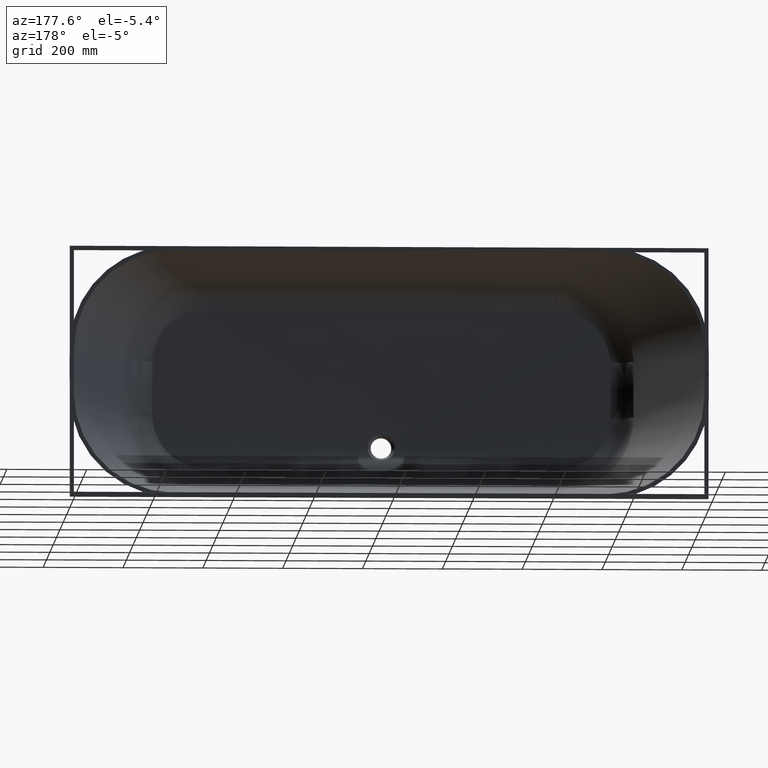
[diagram: clean part render]
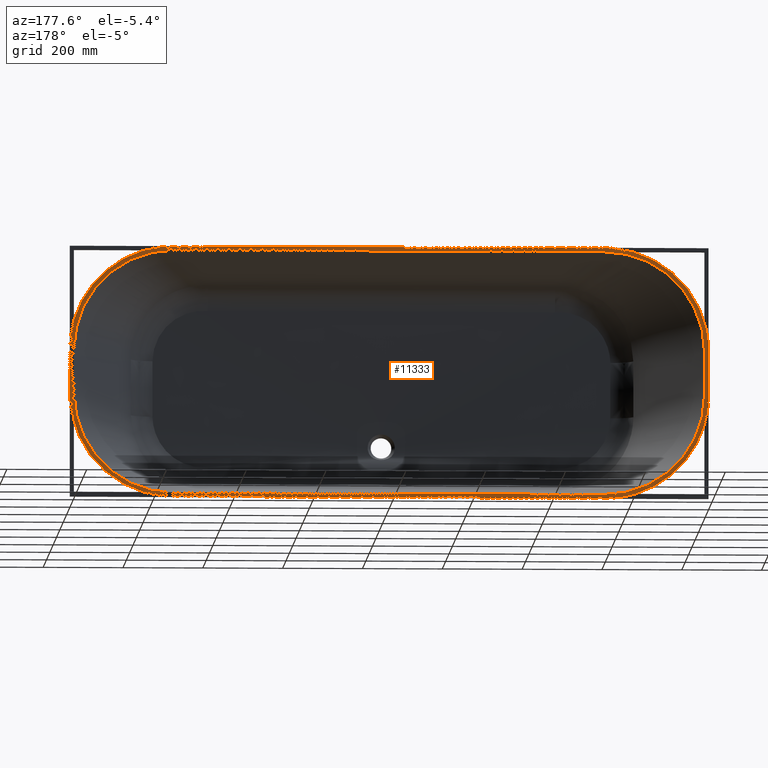
[diagram: same view with one face highlighted and labeled with its STEP entity id]
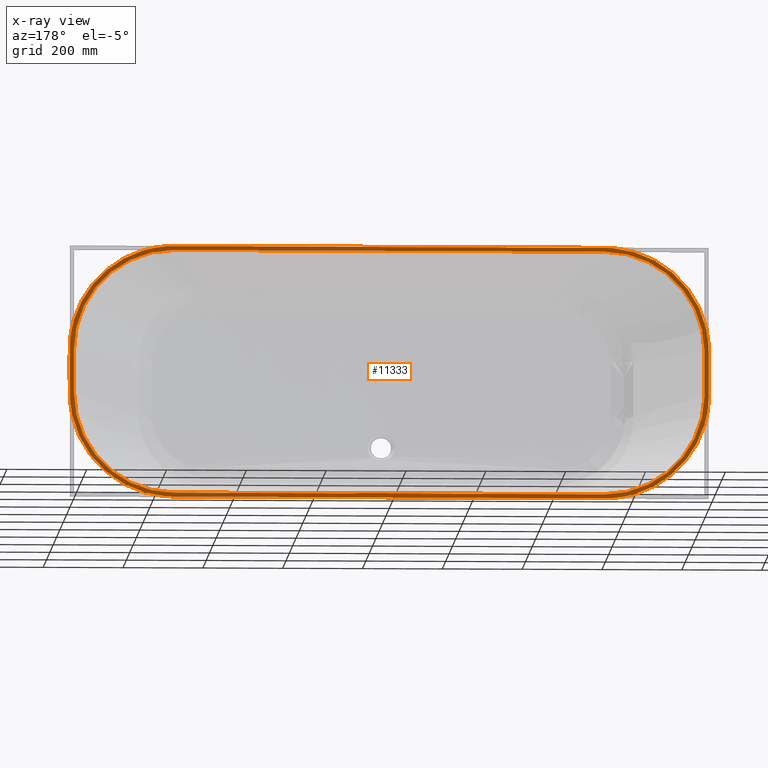
[diagram: x-ray of the same camera — body ghosted, the highlighted face saturated]
A machine part, auxiliary view. The second image highlights one B-rep face of the part: STEP entity #11333.
The next image is the same camera in x-ray: the body ghosted, the highlighted face saturated — about 0% of this face is hidden behind the body in this view.
In plain terms, the highlighted planar face has unit normal (0, -1, 0).
Its self-contained STEP definition (entity closure, byte-faithful):
#22 = CARTESIAN_POINT ( 'NONE',  ( -605.4817269374038915, 3.174543961037556478E-13, -306.8297520519155341 ) ) ;
#38 = EDGE_CURVE ( 'NONE', #7604, #12897, #401, .T. ) ;
#125 = CARTESIAN_POINT ( 'NONE',  ( 536.5213542237917181, 8.782037597132587178E-14, 315.0688195525798392 ) ) ;
#147 = CARTESIAN_POINT ( 'NONE',  ( 537.6195403802749979, -8.720238073300903075E-13, -315.0688195525793276 ) ) ;
#257 = CARTESIAN_POINT ( 'NONE',  ( 621.2204182232993617, -1.159554223473247194E-12, 302.1886917201051688 ) ) ;
#297 = EDGE_CURVE ( 'NONE', #12609, #7886, #1283, .T. ) ;
#388 = CARTESIAN_POINT ( 'NONE',  ( 715.6788676308208323, -9.757819552374394556E-15, 247.2513564127681320 ) ) ;
#401 = LINE ( 'NONE', #8546, #4158 ) ;
#515 = CARTESIAN_POINT ( 'NONE',  ( 775.2391697566557696, 3.252606517456510778E-14, 167.0457026503689519 ) ) ;
#640 = DIRECTION ( 'NONE',  ( 0.0000000000000000000, 0.0000000000000000000, -1.000000000000000000 ) ) ;
#644 = CARTESIAN_POINT ( 'NONE',  ( 799.1138545721930768, -1.437652080715779132E-13, 83.36871185086621949 ) ) ;
#693 = CARTESIAN_POINT ( 'NONE',  ( -793.8829495547472561, -6.108395039783331981E-13, -114.8300056041485675 ) ) ;
#770 = CARTESIAN_POINT ( 'NONE',  ( 800.6762580494111035, 1.333568672156830613E-14, 26.04243127981547801 ) ) ;
#840 = CARTESIAN_POINT ( 'NONE',  ( 790.0000000000001137, 0.0000000000000000000, 55.00000000000004974 ) ) ;
#972 = CARTESIAN_POINT ( 'NONE',  ( -775.5642751830262114, -1.609389704837491870E-12, -166.3627650942160585 ) ) ;
#1190 = CARTESIAN_POINT ( 'NONE',  ( 800.6762580494106487, -6.680853786855678322E-13, 4.655357770898278313E-13 ) ) ;
#1213 = CARTESIAN_POINT ( 'NONE',  ( -800.6762580494106487, 2.699663409488976723E-13, -49.81702233144527270 ) ) ;
#1283 = B_SPLINE_CURVE_WITH_KNOTS ( 'NONE', 3,
 ( #1190, #17479, #1459, #21871, #11477, #21611, #11606, #9339, #13487, #6167, #7648, #6032, #10045, #7912, #18179, #21915, #15928, #24301, #16195, #5767, #17919, #24434, #3889, #19921, #1636, #5898, #12174, #26164, #11780, #15799, #22045, #3756, #24165, #12042, #18048, #13925, #9912, #12410, #10279, #20416, #10408, #18545, #22539, #8415, #2258, #14418, #20545, #16560, #16428, #24409, #22408, #6271, #12280, #24540, #4124, #4258, #14294, #20683, #12552, #10545, #10414, #147, #2398, #4396, #6409, #20552, #18417, #14425, #8287, #22676, #18552, #4266, #16434, #22546, #16566, #10286, #18293, #22, #5885, #12162, #12031, #26281, #16049, #10160, #7901, #3878, #16312, #20298, #6021, #16184, #4007, #10034, #22169, #20170, #11251, #15261, #19253, #5101, #9122, #3096, #17263, #7109, #21385, #25377, #13260, #972, #10967, #25099, #2816, #8837, #16977, #4820, #693, #23101, #12973, #21106, #25618, #15504, #17500, #19500, #21498, #11361, #3206, #1213, #13371, #9361, #9121, #7108 ),
 .UNSPECIFIED., .F., .F.,
 ( 4, 1, 1, 2, 2, 2, 2, 2, 2, 2, 2, 2, 2, 2, 2, 2, 2, 2, 2, 2, 2, 2, 2, 2, 2, 2, 2, 2, 2, 2, 2, 2, 1, 1, 1, 1, 1, 2, 2, 2, 2, 2, 2, 2, 2, 2, 2, 2, 2, 2, 2, 2, 2, 2, 2, 2, 2, 2, 2, 2, 2, 2, 2, 2, 2, 2, 1, 4 ),
 ( -0.2027873519190733220, -0.1717256462681021056, -0.1561947934426164697, -0.1484293670298736378, -0.1406639406171308337, -0.1251330877916451978, -0.1173676613789023937, -0.1134849481725309778, -0.1096022349661595618, -0.07854052931518834546, -0.04747882366421721234, -0.03194797083873165966, -0.02418254442598888332, -0.01641711801324607922, 0.01464458763772497063, 0.04570629328869602048, 0.05347171970143876907, 0.05735443290781028214, 0.06123714611418179521, 0.07676799893966740340, 0.1078297045906385643, 0.1388914102416097252, 0.1466568366543524737, 0.1544222630670951113, 0.1699531158925808860, 0.1777185423053236901, 0.1854839687180666052, 0.2010148215435522689, 0.2320765271945237629, 0.2476073800200094821, 0.2553728064327521752, 0.2592555196391235217, 0.2631382328454948127, 0.2941999384964680275, 0.7911872289120371882, 1.288174519327606404, 1.319236224978579841, 1.323118938184951299, 1.327001651391322978, 1.334767077804066338, 1.350297930629553278, 1.381359636280526937, 1.396890489106014099, 1.404655915518757459, 1.412421341931500818, 1.443483047582474477, 1.459013900407960973, 1.466779326820704554, 1.474544753233447913, 1.505606458884421794, 1.521137311709908735, 1.528902738122652316, 1.536668164535395897, 1.567729870186369778, 1.598791575837343881, 1.614322428662830822, 1.618205141869202723, 1.622087855075574625, 1.629853281488318206, 1.660914987139292087, 1.691976692790266190, 1.699742119203009549, 1.707507545615753131, 1.723038398441240293, 1.730803824853983874, 1.738569251266727234, 1.754100104092214396, 1.785161809743188721 ),
 .UNSPECIFIED. ) ;
#1459 = CARTESIAN_POINT ( 'NONE',  ( 800.6762580494115582, -7.864802559209851184E-13, -26.08489502548048122 ) ) ;
#1597 = CARTESIAN_POINT ( 'NONE',  ( -798.4836482226193084, -1.490994827602065698E-12, 88.98341612280795232 ) ) ;
#1636 = CARTESIAN_POINT ( 'NONE',  ( 768.7410521100470078, -1.606787619623517571E-13, -179.7494674035816615 ) ) ;
#1727 = CARTESIAN_POINT ( 'NONE',  ( -769.5607753437576548, 1.632808471763186338E-13, 178.2391415946705138 ) ) ;
#1854 = CARTESIAN_POINT ( 'NONE',  ( -690.9572926845619349, -5.392821605942897035E-13, 267.3298371494526577 ) ) ;
#1979 = CARTESIAN_POINT ( 'NONE',  ( -578.3478215012531791, 6.046595515951643082E-13, 312.2843684293895308 ) ) ;
#2110 = CARTESIAN_POINT ( 'NONE',  ( -0.01473423012902195031, 7.757466544133781196E-13, 315.0688195525796687 ) ) ;
#2240 = CARTESIAN_POINT ( 'NONE',  ( 606.1005344291488655, 3.981190377366783389E-13, 306.6696638754435753 ) ) ;
#2258 = CARTESIAN_POINT ( 'NONE',  ( 644.1447770715626575, 1.756407519426514406E-13, -293.4827260094567123 ) ) ;
#2376 = CARTESIAN_POINT ( 'NONE',  ( 691.3462719728488537, -3.142017895862926721E-13, 267.0591617998452421 ) ) ;
#2398 = CARTESIAN_POINT ( 'NONE',  ( 525.8374983905723639, -4.811824766762245522E-13, -315.0688195525794981 ) ) ;
#2486 = AXIS2_PLACEMENT_3D ( 'NONE', #14398, #22516, #4238 ) ;
#2508 = CARTESIAN_POINT ( 'NONE',  ( 762.2806942672356172, -9.764324765404360036E-13, 191.2603442848623558 ) ) ;
#2637 = CARTESIAN_POINT ( 'NONE',  ( 798.1420876952295202, -4.956972332603640444E-13, 91.18902800091376548 ) ) ;
#2764 = CARTESIAN_POINT ( 'NONE',  ( 800.6762580494104213, -1.626953780031730990E-12, 57.29334881559437775 ) ) ;
#2816 = CARTESIAN_POINT ( 'NONE',  ( -778.8487920808802301, -1.209969624493855765E-13, -159.1880278387418173 ) ) ;
#2882 = VECTOR ( 'NONE', #19902, 1000.000000000000000 ) ;
#3096 = CARTESIAN_POINT ( 'NONE',  ( -744.0379029665079997, -4.943961906533521566E-14, -217.2137897541860809 ) ) ;
#3206 = CARTESIAN_POINT ( 'NONE',  ( -800.6779537221051442, -4.735795089416754050E-13, -52.43897370460474860 ) ) ;
#3587 = CARTESIAN_POINT ( 'NONE',  ( -800.3944931585587028, 4.996003610813203422E-13, 68.06015689073205976 ) ) ;
#3606 = LINE ( 'NONE', #11761, #2882 ) ;
#3717 = CARTESIAN_POINT ( 'NONE',  ( -776.6475932605666230, 8.372209175933066249E-13, 164.1697975817821202 ) ) ;
#3756 = CARTESIAN_POINT ( 'NONE',  ( 724.3858369568492890, -5.483894588431669310E-13, -238.8798425512629535 ) ) ;
#3849 = CARTESIAN_POINT ( 'NONE',  ( -715.1719754245710874, -5.633514488234671951E-13, 247.7109641394946493 ) ) ;
#3859 = EDGE_CURVE ( 'NONE', #8040, #10894, #3606, .T. ) ;
#3878 = CARTESIAN_POINT ( 'NONE',  ( -663.9755690883547459, 3.076965765513870167E-13, -283.8909210307252806 ) ) ;
#3889 = CARTESIAN_POINT ( 'NONE',  ( 772.4095508762020472, 7.350890729451699868E-14, -172.8024993369661217 ) ) ;
#3978 = CARTESIAN_POINT ( 'NONE',  ( -606.4031863664291677, 7.591583611743504066E-13, 306.7490586622564024 ) ) ;
#4007 = CARTESIAN_POINT ( 'NONE',  ( -690.8530711944496261, -1.144266972841205217E-12, -267.4096904458899644 ) ) ;
#4106 = CARTESIAN_POINT ( 'NONE',  ( -536.5508226840519228, -1.668587143455206975E-13, 315.0688195525795550 ) ) ;
#4124 = CARTESIAN_POINT ( 'NONE',  ( 576.5516939694324492, 5.565209751368074065E-13, -312.7381256406505372 ) ) ;
#4158 = VECTOR ( 'NONE', #16683, 1000.000000000000000 ) ;
#4203 = CARTESIAN_POINT ( 'NONE',  ( 540.0000000000001137, 0.0000000000000000000, 55.00000000000004974 ) ) ;
#4238 = DIRECTION ( 'NONE',  ( 0.0000000000000000000, 0.0000000000000000000, -1.000000000000000000 ) ) ;
#4241 = CARTESIAN_POINT ( 'NONE',  ( 575.4975459563197546, 1.837722682362931783E-13, 312.8847002466919776 ) ) ;
#4258 = CARTESIAN_POINT ( 'NONE',  ( 561.0693759676273658, 5.565209751368108396E-13, -314.2886769937988447 ) ) ;
#4266 = CARTESIAN_POINT ( 'NONE',  ( -546.3208730793646737, -1.557998521861681484E-13, -315.0112377309006320 ) ) ;
#4373 = CARTESIAN_POINT ( 'NONE',  ( 673.6539942504323335, -9.666746569880852449E-13, 278.3555274035503544 ) ) ;
#4396 = CARTESIAN_POINT ( 'NONE',  ( 346.4886369917692832, -6.411903885443494898E-13, -315.0688195525798392 ) ) ;
#4411 = CIRCLE ( 'NONE', #19327, 250.0000000000000000 ) ;
#4456 = VERTEX_POINT ( 'NONE', #14663 ) ;
#4506 = CARTESIAN_POINT ( 'NONE',  ( 737.7604170922695630, -3.883612181843077892E-13, 224.7881767445858827 ) ) ;
#4642 = CARTESIAN_POINT ( 'NONE',  ( 788.4557860216177687, 1.628254822638724904E-12, 134.3326378137316510 ) ) ;
#4769 = CARTESIAN_POINT ( 'NONE',  ( 800.1017217749912334, 1.960671208722803586E-12, 72.92197197534100894 ) ) ;
#4820 = CARTESIAN_POINT ( 'NONE',  ( -788.2882370154261480, -6.108395039783322894E-13, -134.8493532356088451 ) ) ;
#4934 = EDGE_CURVE ( 'NONE', #12897, #13573, #19929, .T. ) ;
#5101 = CARTESIAN_POINT ( 'NONE',  ( -728.4081731852885468, -8.294146619514176573E-13, -234.7862844864230283 ) ) ;
#5156 = VERTEX_POINT ( 'NONE', #23441 ) ;
#5190 = CARTESIAN_POINT ( 'NONE',  ( 540.0000000000001137, 0.0000000000000000000, -305.0000000000000000 ) ) ;
#5403 = CARTESIAN_POINT ( 'NONE',  ( 540.0000000000001137, 0.0000000000000000000, -54.99999999999993605 ) ) ;
#5430 = CARTESIAN_POINT ( 'NONE',  ( -539.9999999999998863, 0.0000000000000000000, 305.0000000000000568 ) ) ;
#5528 = CARTESIAN_POINT ( 'NONE',  ( 800.6762580494106487, -6.680853786855678322E-13, 4.655357770898278313E-13 ) ) ;
#5561 = LINE ( 'NONE', #13720, #14873 ) ;
#5601 = CARTESIAN_POINT ( 'NONE',  ( -800.6770891755299999, -3.317658647805648617E-14, 52.35360379609588222 ) ) ;
#5729 = CARTESIAN_POINT ( 'NONE',  ( -788.2329810406870365, 1.044737213407032477E-12, 135.0310660285497306 ) ) ;
#5767 = CARTESIAN_POINT ( 'NONE',  ( 779.1457329967483929, -5.627009275199773061E-13, -158.6041450712961307 ) ) ;
#5858 = CARTESIAN_POINT ( 'NONE',  ( -726.4853998174927483, 4.683753385137377893E-14, 236.7725965514343329 ) ) ;
#5885 = CARTESIAN_POINT ( 'NONE',  ( -613.0617610153540227, 3.174543961037588285E-13, -304.7067559791478857 ) ) ;
#5898 = CARTESIAN_POINT ( 'NONE',  ( 762.3585681042529814, -1.606787619623519591E-13, -191.1339195854063746 ) ) ;
#5992 = CARTESIAN_POINT ( 'NONE',  ( -635.9605831907597349, 2.127204662416569292E-13, 296.9189568231253702 ) ) ;
#6021 = CARTESIAN_POINT ( 'NONE',  ( -677.6231600988580794, -3.662434938656070834E-13, -275.9422518164638518 ) ) ;
#6032 = CARTESIAN_POINT ( 'NONE',  ( 798.6411988956542700, -9.081277396738579081E-13, -87.37318977481793070 ) ) ;
#6123 = CARTESIAN_POINT ( 'NONE',  ( -544.4024940529458263, -5.919743861770879453E-14, 315.0489981353833855 ) ) ;
#6167 = CARTESIAN_POINT ( 'NONE',  ( 799.3882392000595019, 1.301693128286098239E-12, -80.85608051628180704 ) ) ;
#6256 = CARTESIAN_POINT ( 'NONE',  ( 546.9808250656559494, 4.033232081646079650E-14, 314.9951823369258364 ) ) ;
#6271 = CARTESIAN_POINT ( 'NONE',  ( 607.0453204088449866, -2.309350627394122930E-13, -306.4207447879349502 ) ) ;
#6384 = EDGE_CURVE ( 'NONE', #13573, #16877, #26241, .T. ) ;
#6386 = CARTESIAN_POINT ( 'NONE',  ( 659.8809785131370518, -1.288682702216259867E-12, 286.0524212728490170 ) ) ;
#6409 = CARTESIAN_POINT ( 'NONE',  ( 0.8820719604982075746, -1.322509809997818309E-12, -315.0688195525793844 ) ) ;
#6515 = CARTESIAN_POINT ( 'NONE',  ( 724.2117610804400556, -5.828670879282071837E-13, 239.0535881723645844 ) ) ;
#6554 = CARTESIAN_POINT ( 'NONE',  ( 540.0000000000001137, 0.0000000000000000000, -54.99999999999993605 ) ) ;
#6640 = LINE ( 'NONE', #14792, #21006 ) ;
#6650 = CARTESIAN_POINT ( 'NONE',  ( 779.0712799922359864, 1.272419669628983965E-12, 158.6778842826480229 ) ) ;
#6780 = CARTESIAN_POINT ( 'NONE',  ( 799.5138500092762115, 7.806255641895631925E-14, 79.43581763546565355 ) ) ;
#6816 = CARTESIAN_POINT ( 'NONE',  ( 790.0000000000001137, 0.0000000000000000000, -54.99999999999993605 ) ) ;
#7108 = CARTESIAN_POINT ( 'NONE',  ( -800.6762580494106487, -7.734698298511588632E-13, -2.631295785479003392E-15 ) ) ;
#7109 = CARTESIAN_POINT ( 'NONE',  ( -761.9838560130730230, 8.697469827678715560E-13, -191.7407420034265044 ) ) ;
#7416 = FACE_OUTER_BOUND ( 'NONE', #9381, .T. ) ;
#7604 = VERTEX_POINT ( 'NONE', #16786 ) ;
#7611 = CARTESIAN_POINT ( 'NONE',  ( -800.6762580494109898, 3.838075690598685192E-13, 26.17680259145537747 ) ) ;
#7648 = CARTESIAN_POINT ( 'NONE',  ( 799.1134124335305842, -9.081277396738599276E-13, -83.46305634663711714 ) ) ;
#7705 = CARTESIAN_POINT ( 'NONE',  ( 790.0000000000000000, 0.0000000000000000000, 1.266013573950537714E-09 ) ) ;
#7743 = CARTESIAN_POINT ( 'NONE',  ( -793.6940112392081801, 4.878909776184770963E-13, 114.7861405445692640 ) ) ;
#7873 = CARTESIAN_POINT ( 'NONE',  ( -743.9258820486284094, -4.391018798566294472E-13, 217.3536568934646027 ) ) ;
#7886 = VERTEX_POINT ( 'NONE', #23470 ) ;
#7901 = CARTESIAN_POINT ( 'NONE',  ( -659.3297955474827177, 1.190453985389074276E-13, -286.3359380323429946 ) ) ;
#7912 = CARTESIAN_POINT ( 'NONE',  ( 798.1197810307332929, 3.480288973678459641E-13, -91.27645426785016980 ) ) ;
#7993 = CARTESIAN_POINT ( 'NONE',  ( -539.9999999999998863, 0.0000000000000000000, 305.0000000000000568 ) ) ;
#8006 = CARTESIAN_POINT ( 'NONE',  ( -650.3727698271919735, 4.514617846229649551E-13, 290.6784713508514528 ) ) ;
#8040 = VERTEX_POINT ( 'NONE', #5190 ) ;
#8137 = CARTESIAN_POINT ( 'NONE',  ( -560.1033562207926479, -7.188260403578918379E-14, 314.3646675500730225 ) ) ;
#8265 = CARTESIAN_POINT ( 'NONE',  ( 539.1386034357619792, 8.782037597132816894E-14, 315.0688195525797823 ) ) ;
#8287 = CARTESIAN_POINT ( 'NONE',  ( -538.4736280125463281, -2.878556767949013263E-13, -315.0688195525794981 ) ) ;
#8398 = CARTESIAN_POINT ( 'NONE',  ( 623.7156498735412242, -2.654126918244514350E-13, 301.3591317735742336 ) ) ;
#8415 = CARTESIAN_POINT ( 'NONE',  ( 646.5463050699891028, 6.960577947356964972E-14, -292.4244695374874254 ) ) ;
#8436 = AXIS2_PLACEMENT_3D ( 'NONE', #10778, #18917, #640 ) ;
#8466 = ORIENTED_EDGE ( 'NONE', *, *, #4934, .F. ) ;
#8531 = CARTESIAN_POINT ( 'NONE',  ( 720.4461465782590039, -9.757819552369650347E-15, 242.7327050690506098 ) ) ;
#8546 = CARTESIAN_POINT ( 'NONE',  ( -789.9999999999998863, 0.0000000000000000000, 55.00000000000004974 ) ) ;
#8662 = CARTESIAN_POINT ( 'NONE',  ( 775.8048552698865024, 2.215025038387885559E-12, 165.8550260693712346 ) ) ;
#8789 = CARTESIAN_POINT ( 'NONE',  ( 799.3203343991423253, -1.437652080715692042E-13, 81.40341283462942101 ) ) ;
#8837 = CARTESIAN_POINT ( 'NONE',  ( -779.8886365800842668, -8.105495441501599847E-13, -156.7810364816641027 ) ) ;
#8900 = AXIS2_PLACEMENT_3D ( 'NONE', #4203, #12355, #20491 ) ;
#8920 = CARTESIAN_POINT ( 'NONE',  ( 800.6762580494107624, -2.239744847920548194E-12, 10.41697251192698026 ) ) ;
#8992 = DIRECTION ( 'NONE',  ( 0.0000000000000000000, 0.0000000000000000000, -1.000000000000000000 ) ) ;
#9121 = CARTESIAN_POINT ( 'NONE',  ( -800.6762580494108761, 3.057450126409138155E-13, -10.48779417504107236 ) ) ;
#9122 = CARTESIAN_POINT ( 'NONE',  ( -737.3805812304937035, -8.294146619514146281E-13, -225.2279913389100727 ) ) ;
#9339 = CARTESIAN_POINT ( 'NONE',  ( 800.4062031312016643, -2.367897544708340169E-13, -67.81923967611953685 ) ) ;
#9361 = CARTESIAN_POINT ( 'NONE',  ( -800.6762580494108761, 8.024180278565245579E-13, -26.21948543760196770 ) ) ;
#9381 = EDGE_LOOP ( 'NONE', ( #15950, #12805 ) ) ;
#9476 = EDGE_LOOP ( 'NONE', ( #11932, #9997, #25427, #16216, #12014, #8466, #17831, #17137, #19788, #22535 ) ) ;
#9749 = CARTESIAN_POINT ( 'NONE',  ( -796.8984937759511240, -1.490994827602064486E-12, 99.35768706343161227 ) ) ;
#9876 = CARTESIAN_POINT ( 'NONE',  ( -768.3078490881050584, 1.295838436554673486E-12, 180.5358956766314122 ) ) ;
#9912 = CARTESIAN_POINT ( 'NONE',  ( 712.0038662340298288, 4.293440603042580898E-13, -250.5322067204454015 ) ) ;
#9997 = ORIENTED_EDGE ( 'NONE', *, *, #26097, .F. ) ;
#10005 = CARTESIAN_POINT ( 'NONE',  ( -673.5689125313251679, -5.392821605942882899E-13, 278.6307758929685860 ) ) ;
#10034 = CARTESIAN_POINT ( 'NONE',  ( -699.2693287923478920, -4.033232081646041154E-13, -261.1973668501773318 ) ) ;
#10045 = CARTESIAN_POINT ( 'NONE',  ( 798.4737350602991910, 3.480288973678461660E-13, -88.67684397225596626 ) ) ;
#10131 = CARTESIAN_POINT ( 'NONE',  ( -575.7601728659777791, 2.927345865710999549E-14, 312.6531915454100385 ) ) ;
#10160 = CARTESIAN_POINT ( 'NONE',  ( -645.2011490068528019, 1.190453985389083869E-13, -293.2373346051409726 ) ) ;
#10264 = CARTESIAN_POINT ( 'NONE',  ( 345.4621617499562376, -2.860260856288335269E-14, 315.0688195525797823 ) ) ;
#10279 = CARTESIAN_POINT ( 'NONE',  ( 691.7637485956566934, 6.635317295611280068E-13, -266.7554700016062270 ) ) ;
#10286 = CARTESIAN_POINT ( 'NONE',  ( -585.1260124513950132, 2.927345865710766914E-15, -311.3912385267408354 ) ) ;
#10391 = CARTESIAN_POINT ( 'NONE',  ( 613.6753008800756106, 3.981190377366772282E-13, 304.5285647398604283 ) ) ;
#10408 = CARTESIAN_POINT ( 'NONE',  ( 665.4190920844647508, 4.911435841359344174E-13, -283.2865230224201127 ) ) ;
#10414 = CARTESIAN_POINT ( 'NONE',  ( 540.2377719335422626, -8.720238073300890958E-13, -315.0688195525793844 ) ) ;
#10522 = CARTESIAN_POINT ( 'NONE',  ( 699.7451825187305303, 1.030425744730217154E-12, 260.8304560818755249 ) ) ;
#10545 = CARTESIAN_POINT ( 'NONE',  ( 541.5469037090127813, -3.675445364726058824E-14, -315.0689288002733974 ) ) ;
#10653 = CARTESIAN_POINT ( 'NONE',  ( 769.9455983491478719, -9.764324765404452933E-13, 177.6070203882017324 ) ) ;
#10778 = CARTESIAN_POINT ( 'NONE',  ( -539.9999999999998863, 0.0000000000000000000, 55.00000000000004974 ) ) ;
#10782 = CARTESIAN_POINT ( 'NONE',  ( 798.4950948050160378, 1.356336917779357161E-12, 88.59040819415945123 ) ) ;
#10826 = EDGE_CURVE ( 'NONE', #7886, #12609, #12545, .T. ) ;
#10894 = VERTEX_POINT ( 'NONE', #19020 ) ;
#10917 = CARTESIAN_POINT ( 'NONE',  ( 800.6762580494106487, -1.626953780031747752E-12, 52.08486255963128286 ) ) ;
#10967 = CARTESIAN_POINT ( 'NONE',  ( -776.6818273438254892, -1.609389704837476118E-12, -163.9775514119040736 ) ) ;
#11251 = CARTESIAN_POINT ( 'NONE',  ( -720.9719204404858601, 1.086370576830584621E-13, -242.2417214463640107 ) ) ;
#11333 = ADVANCED_FACE ( 'NONE', ( #7416, #15566 ), #23684, .F. ) ;
#11361 = CARTESIAN_POINT ( 'NONE',  ( -800.6744465517972458, -4.735795089416641968E-13, -57.68286494006025578 ) ) ;
#11477 = CARTESIAN_POINT ( 'NONE',  ( 800.6762580494113308, -4.560154337474033669E-13, -52.16979005096168720 ) ) ;
#11606 = CARTESIAN_POINT ( 'NONE',  ( 800.6390304212416140, -2.367897544708342189E-13, -59.99505351880479509 ) ) ;
#11614 = CARTESIAN_POINT ( 'NONE',  ( -800.6762580494106487, -7.734698298511588632E-13, -2.631295785479003392E-15 ) ) ;
#11745 = CARTESIAN_POINT ( 'NONE',  ( -800.0759982271844137, 3.148523108897905886E-13, 73.29604884972111734 ) ) ;
#11761 = CARTESIAN_POINT ( 'NONE',  ( -539.9999999999998863, 0.0000000000000000000, -304.9999999999999432 ) ) ;
#11780 = CARTESIAN_POINT ( 'NONE',  ( 737.8866309480076779, 6.049848122469129888E-13, -224.6399903430300640 ) ) ;
#11875 = CARTESIAN_POINT ( 'NONE',  ( -773.1915178399074193, 8.372209175933059181E-13, 171.2518446288326572 ) ) ;
#11932 = ORIENTED_EDGE ( 'NONE', *, *, #16369, .F. ) ;
#12003 = CARTESIAN_POINT ( 'NONE',  ( -711.2703434404090785, -2.049142105997611206E-13, 251.1723490567319175 ) ) ;
#12014 = ORIENTED_EDGE ( 'NONE', *, *, #6384, .F. ) ;
#12031 = CARTESIAN_POINT ( 'NONE',  ( -620.6145745300681256, 9.881418600032832885E-13, -302.3850761701340844 ) ) ;
#12042 = CARTESIAN_POINT ( 'NONE',  ( 721.5786115031932013, -1.366094737331737859E-13, -241.6418251683929554 ) ) ;
#12134 = CARTESIAN_POINT ( 'NONE',  ( -591.1913440860066657, 7.591583611743504066E-13, 310.0977101172091466 ) ) ;
#12162 = CARTESIAN_POINT ( 'NONE',  ( -615.5845303121785719, 9.881418600032859139E-13, -303.9591150840586806 ) ) ;
#12174 = CARTESIAN_POINT ( 'NONE',  ( 756.7415979941627029, -5.490399801466599503E-13, -199.8723587103305306 ) ) ;
#12262 = CARTESIAN_POINT ( 'NONE',  ( -524.7732012301846680, 5.172050938570520039E-13, 315.0688195525797255 ) ) ;
#12280 = CARTESIAN_POINT ( 'NONE',  ( 601.9968264928320423, -3.262364337008885871E-13, -307.7042881501711236 ) ) ;
#12355 = DIRECTION ( 'NONE',  ( 0.0000000000000000000, 1.000000000000000000, 0.0000000000000000000 ) ) ;
#12393 = CARTESIAN_POINT ( 'NONE',  ( 585.7587371729747474, 1.496198998029994857E-13, 311.2783367768599305 ) ) ;
#12410 = CARTESIAN_POINT ( 'NONE',  ( 700.0741378260806869, 4.293440603042593520E-13, -260.5722618874547152 ) ) ;
#12526 = CARTESIAN_POINT ( 'NONE',  ( 678.1439798990058989, -9.666746569880759553E-13, 275.6182963302466646 ) ) ;
#12545 = B_SPLINE_CURVE_WITH_KNOTS ( 'NONE', 3,
 ( #11614, #25872, #7611, #15763, #23873, #5601, #13757, #21880, #3587, #11745, #19886, #1597, #9749, #17884, #26001, #7743, #15892, #24001, #5729, #13887, #22008, #3717, #11875, #20018, #1727, #9876, #18011, #26126, #7873, #16019, #24127, #5858, #14016, #22141, #3849, #12003, #20145, #1854, #10005, #18141, #26254, #8006, #16154, #24262, #5992, #14146, #22267, #3978, #12134, #20268, #1979, #10131, #18264, #26382, #8137, #16285, #24392, #6123, #14278, #22391, #4106, #12262, #20400, #2110, #10264, #18396, #125, #8265, #16413, #24525, #6256, #14401, #22520, #4241, #12393, #20528, #2240, #10391, #18529, #257, #8398, #16541, #24653, #6386, #14535, #22653, #4373, #12526, #20660, #2376, #10522, #18659, #388, #8531, #16671, #24784, #6515, #14667, #22784, #4506, #12659, #20791, #2508, #10653, #18787, #515, #8662, #16798, #24915, #6650, #14801, #22916, #4642, #12793, #20926, #2637, #10782, #18921, #644, #8789, #16926, #25046, #6780, #14930, #23050, #4769, #12921, #21054, #2764, #10917, #19050, #770, #8920, #17060 ),
 .UNSPECIFIED., .F., .F.,
 ( 4, 1, 2, 2, 2, 2, 2, 2, 2, 2, 2, 2, 2, 2, 2, 2, 2, 2, 2, 2, 2, 2, 2, 2, 2, 2, 2, 2, 2, 2, 2, 1, 1, 1, 1, 1, 2, 2, 2, 2, 2, 2, 2, 2, 2, 2, 2, 2, 2, 2, 2, 2, 2, 2, 2, 2, 2, 2, 2, 2, 2, 2, 2, 2, 2, 2, 2, 2, 1, 1, 4 ),
 ( 1.785161809743188721, 1.816172949870801245, 1.831678519934607507, 1.839431304966510750, 1.847184089998413992, 1.862689660062220254, 1.878195230126026516, 1.893700800189832778, 1.901453585221736020, 1.909206370253639040, 1.940217510381251342, 1.955723080445057604, 1.963475865476960625, 1.971228650508863867, 2.002239790636476613, 2.033250930764089137, 2.041003715795992157, 2.048756500827895621, 2.064262070891702106, 2.095273211019315518, 2.126284351146928930, 2.134037136178832395, 2.141789921210735859, 2.157295491274542343, 2.188306631402156199, 2.203812201465963128, 2.211564986497866592, 2.219317771529770056, 2.234823341593576540, 2.242576126625480448, 2.246452519141432180, 2.250328911657383912, 2.281340051784999101, 2.777518293826846119, 3.273696535868692692, 3.304707675996308325, 3.308584068512260057, 3.312460461028211789, 3.320213246060115253, 3.335718816123922181, 3.366729956251536926, 3.382235526315343854, 3.389988311347247318, 3.397741096379150783, 3.428752236506765527, 3.444257806570572455, 3.452010591602475920, 3.459763376634379384, 3.490774516761993684, 3.506280086825800613, 3.510156479341752345, 3.514032871857704521, 3.521785656889607985, 3.552796797017222286, 3.583807937144837474, 3.599313507208644403, 3.603189899724596579, 3.607066292240547867, 3.614819077272452219, 3.645830217400067852, 3.676841357527683041, 3.684594142559586949, 3.688470535075539125, 3.690408731333515213, 3.691377829462502813, 3.692346927591490413, 3.707852497655297785, 3.715605282687201250, 3.723358067719105158, 3.738863637782911642, 3.769874777910525943 ),
 .UNSPECIFIED. ) ;
#12552 = CARTESIAN_POINT ( 'NONE',  ( 545.4685340173579107, -3.675445364725859400E-14, -315.0298902480043353 ) ) ;
#12609 = VERTEX_POINT ( 'NONE', #5528 ) ;
#12659 = CARTESIAN_POINT ( 'NONE',  ( 744.3966253647614622, 1.032377308640697322E-12, 216.7635744548861965 ) ) ;
#12793 = CARTESIAN_POINT ( 'NONE',  ( 794.0066656918641002, 1.628254822638721067E-12, 114.3079861240474600 ) ) ;
#12805 = ORIENTED_EDGE ( 'NONE', *, *, #297, .T. ) ;
#12897 = VERTEX_POINT ( 'NONE', #16282 ) ;
#12921 = CARTESIAN_POINT ( 'NONE',  ( 800.4114023561079421, 1.431146867680693187E-13, 67.71178008171310125 ) ) ;
#12973 = CARTESIAN_POINT ( 'NONE',  ( -798.0673095199030058, 3.161533534967703162E-13, -91.71699565061196324 ) ) ;
#13078 = EDGE_CURVE ( 'NONE', #10894, #4456, #25491, .T. ) ;
#13260 = CARTESIAN_POINT ( 'NONE',  ( -774.9959470152281256, 2.615095640035126057E-13, -167.5521448424064488 ) ) ;
#13371 = CARTESIAN_POINT ( 'NONE',  ( -800.6762580494105350, 2.699663409488905536E-13, -41.95117670016456657 ) ) ;
#13487 = CARTESIAN_POINT ( 'NONE',  ( 800.0939412063927421, 1.301693128286096220E-12, -73.03449882620188305 ) ) ;
#13563 = DIRECTION ( 'NONE',  ( 0.0000000000000000000, -1.000000000000000000, 0.0000000000000000000 ) ) ;
#13573 = VERTEX_POINT ( 'NONE', #5430 ) ;
#13720 = CARTESIAN_POINT ( 'NONE',  ( -789.9999999999998863, 0.0000000000000000000, 55.00000000000004974 ) ) ;
#13755 = EDGE_CURVE ( 'NONE', #4456, #7604, #5561, .T. ) ;
#13757 = CARTESIAN_POINT ( 'NONE',  ( -800.6753999673816224, -3.317658647805629684E-14, 57.58896713300016046 ) ) ;
#13887 = CARTESIAN_POINT ( 'NONE',  ( -784.8168164347677020, 8.346188323793414143E-13, 144.9053063365590504 ) ) ;
#13925 = CARTESIAN_POINT ( 'NONE',  ( 715.8908758733437026, -2.315855840429021820E-13, -247.0576137825133003 ) ) ;
#14016 = CARTESIAN_POINT ( 'NONE',  ( -722.7710066075609348, 4.683753385137241578E-14, 240.4928737847162665 ) ) ;
#14074 = VERTEX_POINT ( 'NONE', #7705 ) ;
#14146 = CARTESIAN_POINT ( 'NONE',  ( -631.0963741134175962, -1.623050652210809225E-13, 298.7816065817140725 ) ) ;
#14278 = CARTESIAN_POINT ( 'NONE',  ( -540.4767088432695346, -5.919743861770831490E-14, 315.0720269850469322 ) ) ;
#14294 = CARTESIAN_POINT ( 'NONE',  ( 555.8861398680794537, -4.553649124439257462E-14, -314.6521364060544670 ) ) ;
#14398 = CARTESIAN_POINT ( 'NONE',  ( -539.9999999999998863, 0.0000000000000000000, -54.99999999999993605 ) ) ;
#14401 = CARTESIAN_POINT ( 'NONE',  ( 554.7963722724334730, 4.033232081646142128E-14, 314.7153485008110465 ) ) ;
#14418 = CARTESIAN_POINT ( 'NONE',  ( 636.8965534248911808, 1.756407519426516931E-13, -296.5468850151547713 ) ) ;
#14425 = CARTESIAN_POINT ( 'NONE',  ( -535.8553964592790635, -2.878556767949013767E-13, -315.0688195525794981 ) ) ;
#14482 = EDGE_CURVE ( 'NONE', #16877, #5156, #20402, .T. ) ;
#14535 = CARTESIAN_POINT ( 'NONE',  ( 664.5201594893394486, 1.025872095605773188E-12, 283.5970113556934393 ) ) ;
#14663 = CARTESIAN_POINT ( 'NONE',  ( -789.9999999999998863, 0.0000000000000000000, -54.99999999999988631 ) ) ;
#14667 = CARTESIAN_POINT ( 'NONE',  ( 726.9938573392008720, -5.828670879282079915E-13, 236.2515987200651750 ) ) ;
#14705 = DIRECTION ( 'NONE',  ( 0.0000000000000000000, 1.000000000000000000, -0.0000000000000000000 ) ) ;
#14792 = CARTESIAN_POINT ( 'NONE',  ( 790.0000000000001137, 0.0000000000000000000, 55.00000000000004974 ) ) ;
#14801 = CARTESIAN_POINT ( 'NONE',  ( 780.1052421965073336, 3.681950577760817487E-13, 156.2701307787841642 ) ) ;
#14873 = VECTOR ( 'NONE', #21842, 1000.000000000000000 ) ;
#14922 = EDGE_CURVE ( 'NONE', #5156, #14074, #19123, .T. ) ;
#14930 = CARTESIAN_POINT ( 'NONE',  ( 799.5748035102151334, 7.806255641893857303E-14, 78.78442113791903978 ) ) ;
#15261 = CARTESIAN_POINT ( 'NONE',  ( -722.8603609505267968, -2.220879730119317784E-12, -240.4052106238018212 ) ) ;
#15504 = CARTESIAN_POINT ( 'NONE',  ( -799.3457789569563374, 3.096481404618571886E-13, -81.27818481892374791 ) ) ;
#15566 = FACE_BOUND ( 'NONE', #9476, .T. ) ;
#15763 = CARTESIAN_POINT ( 'NONE',  ( -800.6762580494104213, -9.946470730382023736E-13, 41.88288414633079526 ) ) ;
#15799 = CARTESIAN_POINT ( 'NONE',  ( 728.9722944228075221, 6.049848122469101615E-13, -234.1954889007772351 ) ) ;
#15892 = CARTESIAN_POINT ( 'NONE',  ( -792.4316012026152976, 4.878909776184762885E-13, 119.8846053121718995 ) ) ;
#15928 = CARTESIAN_POINT ( 'NONE',  ( 793.9874604695000926, -1.611341268747956690E-12, -114.3852471455305277 ) ) ;
#15950 = ORIENTED_EDGE ( 'NONE', *, *, #10826, .T. ) ;
#16019 = CARTESIAN_POINT ( 'NONE',  ( -737.2709456774000500, -4.696763811207205208E-13, 225.3533566158846781 ) ) ;
#16049 = CARTESIAN_POINT ( 'NONE',  ( -635.5272026905843177, -1.801944010670908622E-13, -297.2606322843712974 ) ) ;
#16143 = DIRECTION ( 'NONE',  ( 1.000000000000000000, 0.0000000000000000000, 0.0000000000000000000 ) ) ;
#16154 = CARTESIAN_POINT ( 'NONE',  ( -645.5935684404353196, 4.514617846229647531E-13, 292.8485385999751998 ) ) ;
#16184 = CARTESIAN_POINT ( 'NONE',  ( -679.8483951843674049, -1.144266972841197543E-12, -274.5464410557062251 ) ) ;
#16195 = CARTESIAN_POINT ( 'NONE',  ( 785.0856001625446652, -5.627009275199773061E-13, -144.1661576794707571 ) ) ;
#16216 = ORIENTED_EDGE ( 'NONE', *, *, #14482, .F. ) ;
#16282 = CARTESIAN_POINT ( 'NONE',  ( -789.9999999999998863, 0.0000000000000000000, 55.00000000000004974 ) ) ;
#16285 = CARTESIAN_POINT ( 'NONE',  ( -554.8701906230797931, -1.665334536937732286E-13, 314.7110624365999456 ) ) ;
#16312 = CARTESIAN_POINT ( 'NONE',  ( -670.8473962966832005, 3.076965765513830282E-13, -280.0039160938713394 ) ) ;
#16369 = EDGE_CURVE ( 'NONE', #16608, #8040, #4411, .T. ) ;
#16413 = CARTESIAN_POINT ( 'NONE',  ( 540.4476442179511650, 5.522925866641138382E-13, 315.0720366465852749 ) ) ;
#16428 = CARTESIAN_POINT ( 'NONE',  ( 622.0929221174937993, 2.628106066104853155E-13, -301.9017430680755751 ) ) ;
#16434 = CARTESIAN_POINT ( 'NONE',  ( -554.1418425599164266, -1.557998521861663813E-13, -314.7505580854310665 ) ) ;
#16541 = CARTESIAN_POINT ( 'NONE',  ( 636.1115350280242637, -2.654126918244562312E-13, 297.0293682422685606 ) ) ;
#16560 = CARTESIAN_POINT ( 'NONE',  ( 624.5834973595665360, -1.203464411458901087E-13, -301.0640503492571725 ) ) ;
#16566 = CARTESIAN_POINT ( 'NONE',  ( -574.8574608430611761, -1.723881454251942899E-14, -312.9709573211141560 ) ) ;
#16608 = VERTEX_POINT ( 'NONE', #6816 ) ;
#16671 = CARTESIAN_POINT ( 'NONE',  ( 721.3935067679773283, 1.356336917779365845E-12, 241.8210624315409802 ) ) ;
#16683 = DIRECTION ( 'NONE',  ( -0.0000000000000000000, -0.0000000000000000000, 1.000000000000000000 ) ) ;
#16786 = CARTESIAN_POINT ( 'NONE',  ( -789.9999999999997726, 0.0000000000000000000, -1.301042606982605321E-15 ) ) ;
#16798 = CARTESIAN_POINT ( 'NONE',  ( 776.9163238126475335, 2.215025038387885559E-12, 163.4689969764085902 ) ) ;
#16877 = VERTEX_POINT ( 'NONE', #18862 ) ;
#16926 = CARTESIAN_POINT ( 'NONE',  ( 799.3866801316883084, 1.696559559505308655E-12, 80.74800480376799783 ) ) ;
#16977 = CARTESIAN_POINT ( 'NONE',  ( -784.8956574329367868, -8.105495441501639227E-13, -144.6922149319988193 ) ) ;
#17060 = CARTESIAN_POINT ( 'NONE',  ( 800.6762580494106487, -6.680853786855678322E-13, 4.655357770898278313E-13 ) ) ;
#17137 = ORIENTED_EDGE ( 'NONE', *, *, #13755, .F. ) ;
#17263 = CARTESIAN_POINT ( 'NONE',  ( -756.3399692123371096, -4.943961906533900850E-14, -200.4704678743467241 ) ) ;
#17479 = CARTESIAN_POINT ( 'NONE',  ( 800.6762580494109898, 6.127910678888071061E-13, -10.43395801019209301 ) ) ;
#17500 = CARTESIAN_POINT ( 'NONE',  ( -800.0677748115292616, 3.096481404618595110E-13, -73.41354391005097568 ) ) ;
#17831 = ORIENTED_EDGE ( 'NONE', *, *, #38, .F. ) ;
#17884 = CARTESIAN_POINT ( 'NONE',  ( -795.9489212769036612, 2.985892783025068609E-13, 104.5191184801248028 ) ) ;
#17919 = CARTESIAN_POINT ( 'NONE',  ( 777.0157214299632642, -1.131907068074861202E-13, -163.3712075879522274 ) ) ;
#18011 = CARTESIAN_POINT ( 'NONE',  ( -761.8831409237830030, 1.295838436554673486E-12, 191.9040025524373334 ) ) ;
#18048 = CARTESIAN_POINT ( 'NONE',  ( 720.6354217083408003, -2.315855840429033937E-13, -242.5512630254386011 ) ) ;
#18141 = CARTESIAN_POINT ( 'NONE',  ( -664.5205955600736161, 8.261620554339616993E-14, 283.7755290131661923 ) ) ;
#18179 = CARTESIAN_POINT ( 'NONE',  ( 797.9331859446901944, -1.062951809904787739E-12, -92.57333661352041076 ) ) ;
#18264 = CARTESIAN_POINT ( 'NONE',  ( -570.5636382767141868, 2.927345865710887215E-14, 313.3140362177474003 ) ) ;
#18293 = CARTESIAN_POINT ( 'NONE',  ( -600.4079033565415102, 2.927345865710913642E-15, -308.0868784730095058 ) ) ;
#18396 = CARTESIAN_POINT ( 'NONE',  ( 524.7437327699256002, -1.260791601329074405E-13, 315.0688195525793844 ) ) ;
#18417 = CARTESIAN_POINT ( 'NONE',  ( -524.0733544695765431, -2.904984195903409027E-13, -315.0688195525795550 ) ) ;
#18529 = CARTESIAN_POINT ( 'NONE',  ( 616.1975350283158832, -1.159554223473247194E-12, 303.7743218962398828 ) ) ;
#18545 = CARTESIAN_POINT ( 'NONE',  ( 653.6913948097586626, 4.911435841359335086E-13, -289.1023226506463288 ) ) ;
#18552 = CARTESIAN_POINT ( 'NONE',  ( -543.7088374850411583, -3.984442983884218193E-13, -315.0591295558409684 ) ) ;
#18659 = CARTESIAN_POINT ( 'NONE',  ( 711.7676591524291325, 1.030425744730228463E-12, 250.7398668641908728 ) ) ;
#18787 = CARTESIAN_POINT ( 'NONE',  ( 772.3717190138108890, 3.252606517456515826E-14, 172.9649406588867180 ) ) ;
#18862 = CARTESIAN_POINT ( 'NONE',  ( 540.0000000000001137, 0.0000000000000000000, 305.0000000000000568 ) ) ;
#18917 = DIRECTION ( 'NONE',  ( 0.0000000000000000000, 1.000000000000000000, -0.0000000000000000000 ) ) ;
#18921 = CARTESIAN_POINT ( 'NONE',  ( 798.9664373892227331, 1.356336917779365845E-12, 84.67617443320712312 ) ) ;
#19020 = CARTESIAN_POINT ( 'NONE',  ( -539.9999999999998863, 0.0000000000000000000, -304.9999999999999432 ) ) ;
#19050 = CARTESIAN_POINT ( 'NONE',  ( 800.6762580494107624, -9.728546093712469657E-13, 44.27213317568681106 ) ) ;
#19123 = LINE ( 'NONE', #840, #23805 ) ;
#19253 = CARTESIAN_POINT ( 'NONE',  ( -726.5810334844987892, -2.220879730119300820E-12, -236.6748852392197193 ) ) ;
#19327 = AXIS2_PLACEMENT_3D ( 'NONE', #6554, #14705, #22820 ) ;
#19500 = CARTESIAN_POINT ( 'NONE',  ( -800.3890436160297668, 3.903127820947819497E-13, -68.17018289171326728 ) ) ;
#19788 = ORIENTED_EDGE ( 'NONE', *, *, #13078, .F. ) ;
#19886 = CARTESIAN_POINT ( 'NONE',  ( -799.1196762174490686, 3.148523108897906391E-13, 83.76836560537472565 ) ) ;
#19902 = DIRECTION ( 'NONE',  ( -1.000000000000000000, -0.0000000000000000000, 5.139921410301650057E-17 ) ) ;
#19921 = CARTESIAN_POINT ( 'NONE',  ( 769.9855245894585778, 7.350890729451721325E-14, -177.4494433135494944 ) ) ;
#19929 = CIRCLE ( 'NONE', #8436, 250.0000000000000000 ) ;
#20018 = CARTESIAN_POINT ( 'NONE',  ( -772.0018084403201328, 1.632808471763177503E-13, 173.5987981707323229 ) ) ;
#20145 = CARTESIAN_POINT ( 'NONE',  ( -699.2968093713551525, -2.049142105997608681E-13, 261.1728710954373582 ) ) ;
#20170 = CARTESIAN_POINT ( 'NONE',  ( -715.2380736866906545, 1.086370576830451462E-13, -247.6516129034545770 ) ) ;
#20268 = CARTESIAN_POINT ( 'NONE',  ( -586.0792069516895708, 6.046595515951658228E-13, 311.0637654549436775 ) ) ;
#20298 = CARTESIAN_POINT ( 'NONE',  ( -673.1237820553330948, -3.662434938656002676E-13, -278.6703947185328616 ) ) ;
#20400 = CARTESIAN_POINT ( 'NONE',  ( -345.4916302102153054, -9.940778668976438803E-15, 315.0688195525797255 ) ) ;
#20402 = CIRCLE ( 'NONE', #8900, 250.0000000000000000 ) ;
#20416 = CARTESIAN_POINT ( 'NONE',  ( 674.4360532629525551, 6.635317295611287136E-13, -278.1123542801669828 ) ) ;
#20491 = DIRECTION ( 'NONE',  ( 0.0000000000000000000, 0.0000000000000000000, 1.000000000000000000 ) ) ;
#20528 = CARTESIAN_POINT ( 'NONE',  ( 601.0301537667156708, 1.496198998029983750E-13, 307.9383146587713327 ) ) ;
#20545 = CARTESIAN_POINT ( 'NONE',  ( 632.0061985856298179, -1.203464411458909922E-13, -298.4421276129390890 ) ) ;
#20552 = CARTESIAN_POINT ( 'NONE',  ( -344.7244930707731214, 1.420596225289866692E-12, -315.0688195525796687 ) ) ;
#20660 = CARTESIAN_POINT ( 'NONE',  ( 680.3645620092308945, -3.142017895862992355E-13, 274.2179945643767383 ) ) ;
#20683 = CARTESIAN_POINT ( 'NONE',  ( 548.0772001129918181, -4.553649124439119885E-14, -314.9645727370934196 ) ) ;
#20791 = CARTESIAN_POINT ( 'NONE',  ( 756.6567044666429638, 1.032377308640687830E-12, 199.9996162256391870 ) ) ;
#20926 = CARTESIAN_POINT ( 'NONE',  ( 796.1852492285770495, -4.956972332603626308E-13, 104.1283662007010662 ) ) ;
#21006 = VECTOR ( 'NONE', #22908, 1000.000000000000000 ) ;
#21054 = CARTESIAN_POINT ( 'NONE',  ( 800.6408947815319834, 1.431146867680698741E-13, 59.89778671497972340 ) ) ;
#21106 = CARTESIAN_POINT ( 'NONE',  ( -798.4256353645564559, -2.849283309291877380E-13, -89.11900779073377521 ) ) ;
#21385 = CARTESIAN_POINT ( 'NONE',  ( -769.6790156897277484, 8.697469827678689307E-13, -178.1020299803467708 ) ) ;
#21498 = CARTESIAN_POINT ( 'NONE',  ( -800.6328851454837832, 3.903127820947776078E-13, -60.30474413445084991 ) ) ;
#21611 = CARTESIAN_POINT ( 'NONE',  ( 800.6762580494111035, -4.560154337474031649E-13, -57.38676905605789358 ) ) ;
#21689 = DIRECTION ( 'NONE',  ( 0.0000000000000000000, -0.0000000000000000000, -1.000000000000000000 ) ) ;
#21842 = DIRECTION ( 'NONE',  ( -0.0000000000000000000, -0.0000000000000000000, 1.000000000000000000 ) ) ;
#21871 = CARTESIAN_POINT ( 'NONE',  ( 800.6762580494107624, -4.878909776184749758E-14, -44.34432154331678788 ) ) ;
#21880 = CARTESIAN_POINT ( 'NONE',  ( -800.6348748439884275, 4.996003610813203422E-13, 60.20671501237322332 ) ) ;
#21915 = CARTESIAN_POINT ( 'NONE',  ( 796.1677795937284827, -1.062951809904789557E-12, -104.2191281149904540 ) ) ;
#22008 = CARTESIAN_POINT ( 'NONE',  ( -778.8014945773885529, 8.346188323793414143E-13, 159.3940751676748562 ) ) ;
#22045 = CARTESIAN_POINT ( 'NONE',  ( 727.1572864450594125, -5.483894588431667291E-13, -236.0833709093288917 ) ) ;
#22141 = CARTESIAN_POINT ( 'NONE',  ( -720.8872812486058592, -5.633514488234666903E-13, 242.3230388452896591 ) ) ;
#22169 = CARTESIAN_POINT ( 'NONE',  ( -711.3180574454949010, -4.033232081646053270E-13, -251.1317224212540395 ) ) ;
#22267 = CARTESIAN_POINT ( 'NONE',  ( -616.3794516502339320, -1.623050652210767069E-13, 303.9200609025544395 ) ) ;
#22391 = CARTESIAN_POINT ( 'NONE',  ( -539.1680718960220702, -1.668587143455194101E-13, 315.0688195525795550 ) ) ;
#22408 = CARTESIAN_POINT ( 'NONE',  ( 614.5835863037892750, -2.309350627394124949E-13, -304.2600181304179614 ) ) ;
#22516 = DIRECTION ( 'NONE',  ( 0.0000000000000000000, 1.000000000000000000, -0.0000000000000000000 ) ) ;
#22520 = CARTESIAN_POINT ( 'NONE',  ( 559.9866151427791010, 1.837722682362923452E-13, 314.3732475470895906 ) ) ;
#22535 = ORIENTED_EDGE ( 'NONE', *, *, #3859, .F. ) ;
#22539 = CARTESIAN_POINT ( 'NONE',  ( 651.3202055481798425, 6.960577947356943515E-14, -290.2340581141580174 ) ) ;
#22546 = CARTESIAN_POINT ( 'NONE',  ( -559.3356598573013798, -1.723881454252018314E-14, -314.4209262003817003 ) ) ;
#22653 = CARTESIAN_POINT ( 'NONE',  ( 671.3818952514346847, 1.025872095605793787E-12, 279.6939350520480048 ) ) ;
#22676 = CARTESIAN_POINT ( 'NONE',  ( -539.7831132669771250, -3.984442983884229300E-13, -315.0716754407735039 ) ) ;
#22784 = CARTESIAN_POINT ( 'NONE',  ( 728.8154557786871237, -3.883612181843066785E-13, 234.3602128567734724 ) ) ;
#22820 = DIRECTION ( 'NONE',  ( 0.0000000000000000000, 0.0000000000000000000, -1.000000000000000000 ) ) ;
#22908 = DIRECTION ( 'NONE',  ( 0.0000000000000000000, 0.0000000000000000000, -1.000000000000000000 ) ) ;
#22916 = CARTESIAN_POINT ( 'NONE',  ( 785.0836678390477346, 3.681950577760835662E-13, 144.1777194583103778 ) ) ;
#23050 = CARTESIAN_POINT ( 'NONE',  ( 799.6046609732048864, 1.960671208722804798E-12, 78.45872630001503012 ) ) ;
#23101 = CARTESIAN_POINT ( 'NONE',  ( -796.0838113219085699, 3.161533534967731939E-13, -104.6531634164948059 ) ) ;
#23441 = CARTESIAN_POINT ( 'NONE',  ( 790.0000000000001137, 0.0000000000000000000, 55.00000000000006395 ) ) ;
#23470 = CARTESIAN_POINT ( 'NONE',  ( -800.6762580494106487, -7.734698298511588632E-13, -2.631295785479003392E-15 ) ) ;
#23684 = PLANE ( 'NONE',  #24632 ) ;
#23769 = VECTOR ( 'NONE', #16143, 1000.000000000000000 ) ;
#23805 = VECTOR ( 'NONE', #8992, 1000.000000000000000 ) ;
#23873 = CARTESIAN_POINT ( 'NONE',  ( -800.6762580494101940, -9.946470730382019697E-13, 49.73592492376771190 ) ) ;
#24001 = CARTESIAN_POINT ( 'NONE',  ( -791.7628329767763944, 1.044737213407032678E-12, 122.4202388663756835 ) ) ;
#24127 = CARTESIAN_POINT ( 'NONE',  ( -728.3098570707321642, -4.696763811207206218E-13, 234.8888021202976404 ) ) ;
#24165 = CARTESIAN_POINT ( 'NONE',  ( 723.4534607330410836, -1.366094737331744422E-13, -239.8064832089320930 ) ) ;
#24262 = CARTESIAN_POINT ( 'NONE',  ( -643.1932682530041347, 2.127204662416554651E-13, 293.8948791181977072 ) ) ;
#24301 = CARTESIAN_POINT ( 'NONE',  ( 788.4463250222303259, -1.611341268747957902E-12, -134.3587480305306201 ) ) ;
#24392 = CARTESIAN_POINT ( 'NONE',  ( -547.0195320833606729, -1.665334536937732539E-13, 314.9941131029422081 ) ) ;
#24409 = CARTESIAN_POINT ( 'NONE',  ( 617.0905847240164803, 2.628106066104862748E-13, -303.5004651995503195 ) ) ;
#24434 = CARTESIAN_POINT ( 'NONE',  ( 773.5907618125282852, -1.131907068074864610E-13, -170.4519250093959215 ) ) ;
#24525 = CARTESIAN_POINT ( 'NONE',  ( 544.3706072486334051, 5.522925866641159587E-13, 315.0495358976081661 ) ) ;
#24540 = CARTESIAN_POINT ( 'NONE',  ( 586.7837512744121113, -3.262364337008892939E-13, -311.0933577545501407 ) ) ;
#24632 = AXIS2_PLACEMENT_3D ( 'NONE', #5403, #13563, #21689 ) ;
#24653 = CARTESIAN_POINT ( 'NONE',  ( 645.7719686289000265, -1.288682702216265925E-12, 292.9846319571051367 ) ) ;
#24784 = CARTESIAN_POINT ( 'NONE',  ( 723.2759648016559595, 1.356336917779366047E-12, 239.9818600679250835 ) ) ;
#24915 = CARTESIAN_POINT ( 'NONE',  ( 777.4623174307998852, 1.272419669628988206E-12, 162.2732522022147066 ) ) ;
#25046 = CARTESIAN_POINT ( 'NONE',  ( 799.4824638579997327, 1.696559559505317338E-12, 79.76456562929392646 ) ) ;
#25099 = CARTESIAN_POINT ( 'NONE',  ( -777.2308433458093759, -1.209969624493893883E-13, -162.7822092958855649 ) ) ;
#25377 = CARTESIAN_POINT ( 'NONE',  ( -772.1153717495941464, 2.615095640035066482E-13, -173.4649274595176394 ) ) ;
#25427 = ORIENTED_EDGE ( 'NONE', *, *, #14922, .F. ) ;
#25491 = CIRCLE ( 'NONE', #2486, 250.0000000000000000 ) ;
#25618 = CARTESIAN_POINT ( 'NONE',  ( -799.0647433120228698, -2.849283309291876370E-13, -83.90130033494001793 ) ) ;
#25872 = CARTESIAN_POINT ( 'NONE',  ( -800.6762580494108761, 3.057450126409122504E-13, 10.47072103658256026 ) ) ;
#26001 = CARTESIAN_POINT ( 'NONE',  ( -794.2877450476728427, 2.985892783025077697E-13, 112.2224926599720050 ) ) ;
#26097 = EDGE_CURVE ( 'NONE', #14074, #16608, #6640, .T. ) ;
#26126 = CARTESIAN_POINT ( 'NONE',  ( -756.2323808954033666, -4.391018798566313657E-13, 200.6292697657913209 ) ) ;
#26164 = CARTESIAN_POINT ( 'NONE',  ( 744.5056935931448834, -5.490399801466586376E-13, -216.6254404492472929 ) ) ;
#26241 = LINE ( 'NONE', #7993, #23769 ) ;
#26254 = CARTESIAN_POINT ( 'NONE',  ( -652.7531924709755913, 8.261620554339450386E-14, 289.5538348545776444 ) ) ;
#26281 = CARTESIAN_POINT ( 'NONE',  ( -623.1134065447923831, -1.801944010670852581E-13, -301.5613606597196963 ) ) ;
#26382 = CARTESIAN_POINT ( 'NONE',  ( -567.9521858744470819, -7.188260403578920903E-14, 313.6062985205391556 ) ) ;